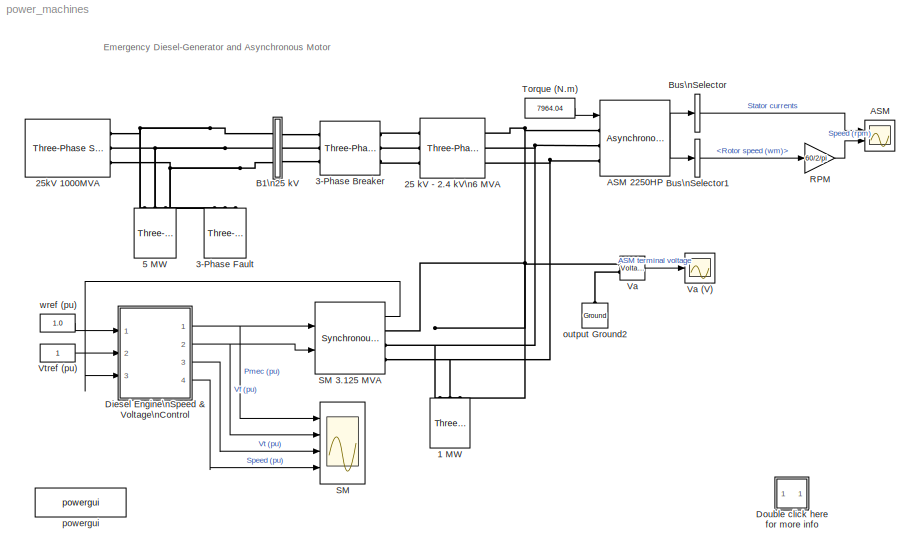
MODEL power_machines
KIND model
BLOCK [Reference] 1 MW  REF=powerlib/Elements/Three-Phase\nParallel RLC Load
  ActivePower = 1e6
  AttributesFormatString = \\n
  CapacitivePower = 0
  Configuration = Y (grounded)
  InductivePower = 0
  LConnTagsString = A|B|C
  LeftPortType = p1
  Measurements = None
  NominalFrequency = 60
  NominalVoltage = 2400
  PhysicalDomain = powersysdomain
  Ports = [0, 0, 0, 0, 0, 3]
  RightPortType = p1
  SourceBlock = powerlib/Elements/Three-Phase\nParallel RLC Load
  SourceType = Three-Phase Parallel RLC Load
  SubClassName = unknown
BLOCK [Reference] 25 kV - 2.4 kV\n6 MVA  REF=powerlib/Elements/Three-Phase\nTransformer\n(Two Windings)
  AttributesFormatString = \\n
  DataFile = 'hysteresis'
  Hysteresis = off
  InitialFluxes = [ 0.8 , -0.8 , 0.7 ]
  Lm = 200
  Measurements = None
  NominalPower = [ 6e6 , 60 ]
  Ports = [0, 0, 0, 0, 0, 3, 3]
  Rm = 200
  Saturation = [ 0,0  ;  0.005,1.2  ;  1.0,1.4 ]
  SetInitialFlux = off
  SetSaturation = off
  ShowPortLabels = on
  SourceBlock = powerlib/Elements/Three-Phase\nTransformer\n(Two Windings)
  SourceType = Three-Phase Transformer (Two Windings)
  TransfoNumber = 0
  Winding1 = [ 25e3 , 0.0015 , 0.03]
  Winding1Connection = Yg
  Winding2 = [ 2.4e3 , 0.0015 , 0.03 ]
  Winding2Connection = Delta (D1)
BLOCK [Reference] 25kV 1000MVA  REF=powerlib/Electrical\nSources/Three-Phase Source
  BaseVoltage = 25e3
  Frequency = 60
  Inductance = 25^2/1000/377
  InternalConnection = Yg
  PhaseAngle = 0
  Ports = [0, 0, 0, 0, 0, 0, 3]
  Resistance = 25^2/1000/10
  ShortCircuitLevel = 1000e6
  ShowPortLabels = on
  SourceBlock = powerlib/Electrical\nSources/Three-Phase Source
  SourceType = Three-Phase Source
  SpecifyImpedance = on
  Voltage = 25e3
  XRratio = 10
BLOCK [Reference] 3-Phase Breaker  REF=powerlib/Elements/Three-Phase Breaker
  AttributesFormatString = \\n
  BreakerResistance = 0.01
  External = off
  InitialState = closed
  Measurements = None
  Ports = [0, 0, 0, 0, 0, 3, 3]
  ShowPortLabels = on
  SnubberCapacitance = inf
  SnubberResistance = 1e5
  SourceBlock = powerlib/Elements/Three-Phase Breaker
  SourceType = Three-Phase Breaker
  SwitchA = on
  SwitchB = on
  SwitchC = on
  SwitchTimes = [0.2]
BLOCK [Reference] 3-Phase Fault  REF=powerlib/Elements/Three-Phase Fault
  External = off
  FaultA = on
  FaultB = on
  FaultC = on
  FaultResistance = 0.01
  GroundFault = on
  GroundResistance = 0.001
  InitialStates = [1 1 0]
  Measurements = None
  Ports = [0, 0, 0, 0, 0, 3]
  ShowPortLabels = on
  SnubberCapacitance = inf
  SnubberResistance = inf
  SourceBlock = powerlib/Elements/Three-Phase Fault
  SourceType = Three-Phase Fault
  SwitchStatus = [1 0]
  SwitchTimes = [ 0.1 0.4]
BLOCK [Reference] 5 MW  REF=powerlib/Elements/Three-Phase\nParallel RLC Load
  ActivePower = 5e6
  AttributesFormatString = \\n
  CapacitivePower = 0
  Configuration = Y (grounded)
  InductivePower = 0
  LConnTagsString = A|B|C
  LeftPortType = p1
  Measurements = None
  NominalFrequency = 60
  NominalVoltage = 25e3
  PhysicalDomain = powersysdomain
  Ports = [0, 0, 0, 0, 0, 3]
  RightPortType = p1
  SourceBlock = powerlib/Elements/Three-Phase\nParallel RLC Load
  SourceType = Three-Phase Parallel RLC Load
  SubClassName = unknown
BLOCK [Scope] ASM
  DataFormat = Array
  LimitDataPoints = off
  NumInputPorts = 2
  Ports = [2]
  SaveName = ScopeData1
  TimeRange = 0.2
  YMax = 6000~0
  YMin = -5000~-70
BLOCK [Reference] ASM 2250HP  REF=powerlib/Machines/Asynchronous Machine\nSI Units
  AttributesFormatString = \\n
  InitialConditions = [1 0 0 0 0 0 0 0]
  Lm = 13.04/377
  LoadFlowParameters = 1492000
  Mechanical = [ 63.87 0  2 ]
  NominalParameters = [ 2250*746, 2400, 60 ]
  Ports = [1, 1, 0, 0, 0, 3]
  PresetModel = No
  ReferenceFrame = Rotor
  Rotor = [ 0.022 0.226/377]
  RotorType = Squirrel-cage
  ShowDetailedParameters = on
  ShowPortLabels = on
  SourceBlock = powerlib/Machines/Asynchronous Machine\nSI Units
  SourceType = Asynchronous Machine
  Stator = [ 0.029 0.226/377]
  Units = 1
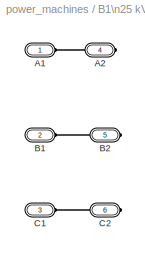
BLOCK [SubSystem] B1\n25 kV
  MaskDisplay = disp('')
  MaskIconFrame = on
  MaskIconOpaque = on
  MaskIconRotate = none
  MaskIconUnits = autoscale
  MinAlgLoopOccurrences = off
  Ports = [0, 0, 0, 0, 0, 3, 3]
  RTWSystemCode = Auto
  TreatAsAtomicUnit = off
BLOCK [PMIOPort] B1\n25 kV/A1
  Port = 1
  Side = Left
BLOCK [PMIOPort] B1\n25 kV/A2
  Port = 4
  Side = Right
BLOCK [PMIOPort] B1\n25 kV/B1
  Port = 2
  Side = Left
BLOCK [PMIOPort] B1\n25 kV/B2
  Port = 5
  Side = Right
BLOCK [PMIOPort] B1\n25 kV/C1
  Port = 3
  Side = Left
BLOCK [PMIOPort] B1\n25 kV/C2
  Port = 6
  Side = Right
BLOCK [BusSelector] Bus\nSelector
  DialogController = Simulink.DDGSource_Bus
  MuxedOutput = on
  OutputSignals = Stator measurements.Stator current is_a (A),Stator measurements.Stator current is_b (A),Stator measurements.Stator current is_c (A)
  Ports = [1, 1]
BLOCK [BusSelector] Bus\nSelector1
  DialogController = Simulink.DDGSource_Bus
  OutputSignals = Mechanical.Rotor speed (wm)
  Ports = [1, 1]
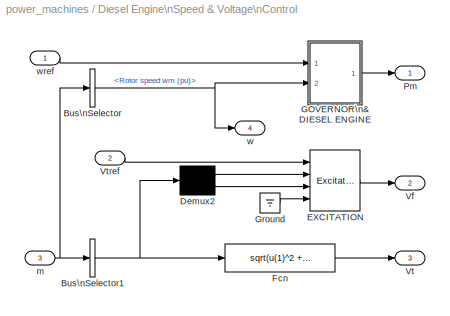
BLOCK [SubSystem] Diesel Engine\nSpeed & Voltage\nControl
  MinAlgLoopOccurrences = off
  Ports = [3, 4]
  RTWSystemCode = Auto
  TreatAsAtomicUnit = off
BLOCK [BusSelector] Diesel Engine\nSpeed & Voltage\nControl/Bus\nSelector
  DialogController = Simulink.DDGSource_Bus
  OutputSignals = Mechanical.Rotor speed  wm  (pu)
  Ports = [1, 1]
BLOCK [BusSelector] Diesel Engine\nSpeed & Voltage\nControl/Bus\nSelector1
  DialogController = Simulink.DDGSource_Bus
  MuxedOutput = on
  OutputSignals = dq0 components.Stator voltage  vd (pu),dq0 components.Stator voltage  vq (pu)
  Ports = [1, 1]
BLOCK [Demux] Diesel Engine\nSpeed & Voltage\nControl/Demux2
  Outputs = 2
  Ports = [1, 2]
BLOCK [Reference] Diesel Engine\nSpeed & Voltage\nControl/EXCITATION  REF=powerlib/Machines/Excitation\nSystem
  Ports = [4, 1]
  ShowPortLabels = on
  SourceBlock = powerlib/Machines/Excitation\nSystem
  SourceType = Excitation System
  damp = [ 0.001, 0.1 ]
  exc = [ 1, 0 ]
  lim = [ 0, 6, 0 ]
  reg = [ 200, 0.02 ]
  sat = [ 0, 0 ]
  tgr = [ 0, 0 ]
  tr = 20e-3
  v0 = [1,1.42734]
BLOCK [Fcn] Diesel Engine\nSpeed & Voltage\nControl/Fcn
  Expr = sqrt(u(1)^2 + u(2)^2)
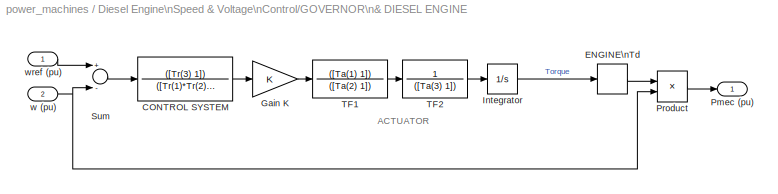
BLOCK [SubSystem] Diesel Engine\nSpeed & Voltage\nControl/GOVERNOR\n& DIESEL ENGINE
  MaskCallbackString = |||||
  MaskDescription = This block implements a diesel engine and governor system:\n1st and 2nd inputs: Desired and actual speed (pu)\nOutput: Diesel engine mechanical power.Motor inertia should be combined with generator.\nController transfer function:\n     Hc=K.(1+T3.s)/(1+T1.s+T1.T2.s^2)\nActuator transfer function : \n     Ha= (1+T4.s) / [ (s (1+T5.s)(1+T6.s) ]\nMotor :\n     Time delay Td\n\n(See reference in Tutor...<+14ch>
  MaskEnableString = on,on,on,on,on,on
  MaskIconFrame = on
  MaskIconOpaque = on
  MaskIconRotate = none
  MaskIconUnits = autoscale
  MaskPromptString = Regulator gain K: |Regulator time constants [T1 T2 T3 ] (s) :|Actuator time constants [T4 T5 T6] (s) :|Torque limits [Tmin Tmax] (pu) :|Engine time delay Td (s) :|Initial value of mechanical power  Pm0 (pu) :
  MaskStyleString = edit,edit,edit,edit,edit,edit
  MaskTabNameString = ,,,,,
  MaskToolTipString = on,on,on,on,on,on
  MaskTunableValueString = on,on,on,on,on,on
  MaskType = Diesel Engine & Governor
  MaskValueString = 40|[0.01 0.02 0.2]|[0.25 0.009 0.0384]|[0 1.1]|0.024|0.000270147
  MaskVarAliasString = ,,,,,
  MaskVariables = K=@1;Tr=@2;Ta=@3;Tlim=@4;Td=@5;Pm0=@6;
  MaskVisibilityString = on,on,on,on,on,on
  MinAlgLoopOccurrences = off
  Ports = [2, 1]
  RTWSystemCode = Auto
  TreatAsAtomicUnit = off
BLOCK [TransferFcn] Diesel Engine\nSpeed & Voltage\nControl/GOVERNOR\n& DIESEL ENGINE/CONTROL SYSTEM
  Denominator = ([Tr(1)*Tr(2)  Tr(1) 1])
  Numerator = ([Tr(3) 1])
BLOCK [TransportDelay] Diesel Engine\nSpeed & Voltage\nControl/GOVERNOR\n& DIESEL ENGINE/ENGINE\nTd
  DelayTime = Td
  InitialInput = Pm0
BLOCK [Gain] Diesel Engine\nSpeed & Voltage\nControl/GOVERNOR\n& DIESEL ENGINE/Gain K
  Gain = K
BLOCK [Integrator] Diesel Engine\nSpeed & Voltage\nControl/GOVERNOR\n& DIESEL ENGINE/Integrator
  InitialCondition = Pm0
  LimitOutput = on
  LowerSaturationLimit = Tlim(1)
  Ports = [1, 1]
  UpperSaturationLimit = Tlim(2)
BLOCK [Outport] Diesel Engine\nSpeed & Voltage\nControl/GOVERNOR\n& DIESEL ENGINE/Pmec (pu)
  BusOutputAsStruct = off
  IconDisplay = Port number
  InitialOutput = 0
BLOCK [Product] Diesel Engine\nSpeed & Voltage\nControl/GOVERNOR\n& DIESEL ENGINE/Product
  Ports = [2, 1]
  RndMeth = Floor
BLOCK [Sum] Diesel Engine\nSpeed & Voltage\nControl/GOVERNOR\n& DIESEL ENGINE/Sum
  Inputs = +-
  Ports = [2, 1]
BLOCK [TransferFcn] Diesel Engine\nSpeed & Voltage\nControl/GOVERNOR\n& DIESEL ENGINE/TF1
  Denominator = ([Ta(2) 1])
  Numerator = ([Ta(1) 1])
BLOCK [TransferFcn] Diesel Engine\nSpeed & Voltage\nControl/GOVERNOR\n& DIESEL ENGINE/TF2
  Denominator = ([Ta(3) 1])
  Numerator = 1
BLOCK [Inport] Diesel Engine\nSpeed & Voltage\nControl/GOVERNOR\n& DIESEL ENGINE/w (pu)
  IconDisplay = Port number
  LatchInput = off
  Port = 2
BLOCK [Inport] Diesel Engine\nSpeed & Voltage\nControl/GOVERNOR\n& DIESEL ENGINE/wref (pu)
  IconDisplay = Port number
  LatchInput = off
  Port = 1
BLOCK [Ground] Diesel Engine\nSpeed & Voltage\nControl/Ground
BLOCK [Outport] Diesel Engine\nSpeed & Voltage\nControl/Pm
  BusOutputAsStruct = off
  IconDisplay = Port number
  InitialOutput = 0
BLOCK [Outport] Diesel Engine\nSpeed & Voltage\nControl/Vf
  BusOutputAsStruct = off
  IconDisplay = Port number
  InitialOutput = 0
  Port = 2
BLOCK [Outport] Diesel Engine\nSpeed & Voltage\nControl/Vt
  BusOutputAsStruct = off
  IconDisplay = Port number
  InitialOutput = 0
  Port = 3
BLOCK [Inport] Diesel Engine\nSpeed & Voltage\nControl/Vtref
  IconDisplay = Port number
  LatchInput = off
  Port = 2
BLOCK [Inport] Diesel Engine\nSpeed & Voltage\nControl/m
  IconDisplay = Port number
  LatchInput = off
  Port = 3
BLOCK [Outport] Diesel Engine\nSpeed & Voltage\nControl/w
  BusOutputAsStruct = off
  IconDisplay = Port number
  InitialOutput = 0
  Port = 4
BLOCK [Inport] Diesel Engine\nSpeed & Voltage\nControl/wref
  IconDisplay = Port number
  LatchInput = off
  Port = 1
BLOCK [SubSystem] Double click here for more info
  MaskDisplay = disp('?')
  MaskIconFrame = on
  MaskIconOpaque = on
  MaskIconRotate = none
  MaskIconUnits = autoscale
  MinAlgLoopOccurrences = off
  Ports = []
  RTWSystemCode = Auto
  TreatAsAtomicUnit = off
BLOCK [Gain] RPM
  Gain = 60/2/pi
BLOCK [Scope] SM
  DataFormat = Structure
  Decimation = 10
  LimitDataPoints = off
  NumInputPorts = 4
  Ports = [4]
  SaveName = Pmec_SM
  SaveToWorkspace = on
  TimeRange = 0.8
  YMax = 1.5~6~1.5~1.2
  YMin = 0~0~0~0.8
  ZoomMode = yonly
BLOCK [Reference] SM 3.125 MVA  REF=powerlib/Machines/Synchronous Machine\npu Standard
  AttributesFormatString = \\n\\n
  InitialConditions = [0 0 0 0 0 0 0 0 1]
  LoadFlowParameters = [1 0 0 0]
  Mechanical = [ 1.07  0  2 ]
  NominalParameters = [ 3.125e6  2400  60]
  Ports = [2, 1, 0, 0, 0, 0, 3]
  PresetModel = No
  Reactances1 = [ 31 32 33 34 35 36 37 ]
  Reactances2 = [ 1.56, 0.296, 0.177, 1.06, 0.177, 0.052 ]
  RotorType = Salient-pole
  Saturation = [0.211 0.418 1.0 1.72 3.35 ; 0.25 0.50 1.0 1.2 1.4]
  SetSaturation = off
  ShowDetailedParameters = on
  ShowPortLabels = on
  SourceBlock = powerlib/Machines/Synchronous Machine\npu Standard
  SourceType = Synchronous Machine
  StatorResistance = 0.0036
  TimeConstants1 = []
  TimeConstants2 = []
  TimeConstants3 = []
  TimeConstants4 = []
  TimeConstants5 = [ 3.7, 0.05, 0.05 ]
  TimeConstants6 = []
  TimeConstants7 = [0.024 0.006 0.006]
  TimeConstants8 = []
  Units = 0.5
  dAxisTimeConstants = Short-circuit
  qAxisTimeConstants = Open-circuit
BLOCK [Constant] Torque (N.m)
  Value = 7964.04
BLOCK [Reference] Va  REF=powerlib/Measurements/Voltage Measurement
  AttributesFormatString = \\n
  OutputType = Magnitude
  PSBequivalent = 0
  PhasorSimulation = off
  Ports = [0, 1, 0, 0, 0, 2]
  ShowPortLabels = on
  SourceBlock = powerlib/Measurements/Voltage Measurement
  SourceType = Voltage Measurement
  Tag = PoWeRsYsTeMmEaSuReMeNt
BLOCK [Scope] Va (V)
  DataFormat = Array
  LimitDataPoints = off
  NumInputPorts = 1
  Ports = [1]
  TickLabels = on
  TimeRange = 0.2
  YMax = 2000
  YMin = -2000
  ZoomMode = xonly
BLOCK [Constant] Vtref (pu)
BLOCK [Reference] output Ground2  REF=powerlib/Elements/Ground
  AttributesFormatString = \\n
  LConnTagsString = a
  LeftPortType = p1
  PhysicalDomain = powersysdomain
  Ports = [0, 0, 0, 0, 0, 1]
  RightPortType = p1
  SourceBlock = powerlib/Elements/Ground
  SourceType = Ground
  SubClassName = unknown
BLOCK [Reference] powergui  REF=powerlib/powergui
  DisplayStyle = off
  Frange = logspace(0,3,50)
  FreqAxis = off
  MaxFrequency = 1000
  Ports = []
  Priority = 2
  RmsSteady = 1
  ShowPortLabels = on
  SourceBlock = powerlib/powergui
  SourceType = PSB option menu block
  StartTime = 0.0
  Ts = 0
  Xlog = off
  Ylog = off
  ZoomFFT = on
  cycles = 2
  display = off
  echomessages = on
  frequency = 60
  frequencyindice = 60
  frequencyindicesteady = 1
  fundamental = 60
  methode = off
  save = off
  variable = ZData
BLOCK [Constant] wref (pu)
  Value = 1.0
ANNOTATION (root): Emergency Diesel-Generator and Asynchronous Motor
ANNOTATION Diesel Engine\nSpeed & Voltage\nControl/GOVERNOR\n& DIESEL ENGINE: ACTUATOR
ANNOTATION Double click here for more info: 1
ANNOTATION Double click here for more info: 2
ANNOTATION Double click here for more info: 3
ANNOTATION Double click here for more info: 4
ANNOTATION Double click here for more info: A plant consisting of a resistive and motor load (ASM) is fed at 2400 V from a distibution 25 kV network through a 6 MVA 25/2 kV Wye-Delta transformer and from an\nemergency synchronous generator/ diesel engine unit (SM). The 25 kV network is modelled by a simple R-L equivalent source (short-circuit level 1000 MVA) and a 5 MW load.\nThe asynchronous motor is rated 2250 HP, 2.4 kV and the synchrono...<+746ch>
ANNOTATION Double click here for more info: Circuit Description
ANNOTATION Double click here for more info: Demonstration
ANNOTATION Double click here for more info: G. Sybille (Hydro-Quebec)
ANNOTATION Double click here for more info: In order to start the simulation in steady-state, you must initialize the synchronous machine and the asynchronous motor for the desired load flow.\nOpen the Powergui and select \"Load Flow & Machine initialization\" . The machine \"Bus type\" should be already initialized as \"PV generator\",\nindicating that the load flow will be performed with the machine controlling its active power and termin...<+77ch>
ANNOTATION Double click here for more info: Load Flow : U AB (Vrms) = 2400 , P (wattts) = 0. Specify also the ASM mechanical power by entering Pmec (Watts) = 2000*746.
ANNOTATION Double click here for more info: Open the SM and ASM scopes displaying the synchronous machine and asynchronous machine signals. Start the simulation.\nObserve that during the fault the terminal voltage drops to about 0.2 pu and the excitation voltage hits the limit of 6 pu. After fault clearing and islanding\nthe SM mechanical power increases from its initial value of 0 pu to the final value of 0.80 pu required by the resistive ...<+401ch>
ANNOTATION Double click here for more info: Start Simulation. If the SM and ASM initial conditions are not properly set, you observe that the voltage and currents Machine do not start in steady state.\nStop the simulation.
ANNOTATION Double click here for more info: The diesel engine governor and SM excitation system contain integrators and transfer functions which have also been initialized by the load flow.\nOpen the GOVERNOR block in the Diesel Engine subsystem. Note that the initial mechanical power has been automatically set to 0.00027 pu (844 W).\nNow open the EXCITATION block. Notice in the last line of the block menu, that the initial terminal voltage...<+207ch>
ANNOTATION Double click here for more info: Then press the \"Execute Load Flow\" button.\n\nOnce the load flow is solved, the three line-to-line machine voltages and the three machine currents are updated.\nThe SM reactive power, mechanical power and field voltage are displayed: Q = 856 kvar; Pmec = 844 W (power required by resistive losses in stator winding );\n field voltage Ef = 1.4273 pu; the active and reactive powers absorbed by the m...<+41ch>
ANNOTATION Double click here for more info: This demonstration illustrates fault and islanding of an induction motor/diesel-generator system\nand demonstrates the Machine Load Flow option of the Powergui. (See Chapter 2 of the User's Guide.)
NET ASM 2250HP:1 -> Bus\nSelector1:1, Bus\nSelector:1
LINE Bus\nSelector1:1 -> RPM:1
LINE Bus\nSelector:1 -> ASM:1
NET Diesel Engine\nSpeed & Voltage\nControl/Bus\nSelector1:1 -> Diesel Engine\nSpeed & Voltage\nControl/Demux2:1, Diesel Engine\nSpeed & Voltage\nControl/Fcn:1
NET Diesel Engine\nSpeed & Voltage\nControl/Bus\nSelector:1 -> Diesel Engine\nSpeed & Voltage\nControl/GOVERNOR\n& DIESEL ENGINE:2, Diesel Engine\nSpeed & Voltage\nControl/w:1
LINE Diesel Engine\nSpeed & Voltage\nControl/Demux2:1 -> Diesel Engine\nSpeed & Voltage\nControl/EXCITATION:2
LINE Diesel Engine\nSpeed & Voltage\nControl/Demux2:2 -> Diesel Engine\nSpeed & Voltage\nControl/EXCITATION:3
LINE Diesel Engine\nSpeed & Voltage\nControl/EXCITATION:1 -> Diesel Engine\nSpeed & Voltage\nControl/Vf:1
LINE Diesel Engine\nSpeed & Voltage\nControl/Fcn:1 -> Diesel Engine\nSpeed & Voltage\nControl/Vt:1
LINE Diesel Engine\nSpeed & Voltage\nControl/GOVERNOR\n& DIESEL ENGINE/CONTROL SYSTEM:1 -> Diesel Engine\nSpeed & Voltage\nControl/GOVERNOR\n& DIESEL ENGINE/Gain K:1
LINE Diesel Engine\nSpeed & Voltage\nControl/GOVERNOR\n& DIESEL ENGINE/ENGINE\nTd:1 -> Diesel Engine\nSpeed & Voltage\nControl/GOVERNOR\n& DIESEL ENGINE/Product:1
LINE Diesel Engine\nSpeed & Voltage\nControl/GOVERNOR\n& DIESEL ENGINE/Gain K:1 -> Diesel Engine\nSpeed & Voltage\nControl/GOVERNOR\n& DIESEL ENGINE/TF1:1
LINE Diesel Engine\nSpeed & Voltage\nControl/GOVERNOR\n& DIESEL ENGINE/Integrator:1 -> Diesel Engine\nSpeed & Voltage\nControl/GOVERNOR\n& DIESEL ENGINE/ENGINE\nTd:1
LINE Diesel Engine\nSpeed & Voltage\nControl/GOVERNOR\n& DIESEL ENGINE/Product:1 -> Diesel Engine\nSpeed & Voltage\nControl/GOVERNOR\n& DIESEL ENGINE/Pmec (pu):1
LINE Diesel Engine\nSpeed & Voltage\nControl/GOVERNOR\n& DIESEL ENGINE/Sum:1 -> Diesel Engine\nSpeed & Voltage\nControl/GOVERNOR\n& DIESEL ENGINE/CONTROL SYSTEM:1
LINE Diesel Engine\nSpeed & Voltage\nControl/GOVERNOR\n& DIESEL ENGINE/TF1:1 -> Diesel Engine\nSpeed & Voltage\nControl/GOVERNOR\n& DIESEL ENGINE/TF2:1
LINE Diesel Engine\nSpeed & Voltage\nControl/GOVERNOR\n& DIESEL ENGINE/TF2:1 -> Diesel Engine\nSpeed & Voltage\nControl/GOVERNOR\n& DIESEL ENGINE/Integrator:1
NET Diesel Engine\nSpeed & Voltage\nControl/GOVERNOR\n& DIESEL ENGINE/w (pu):1 -> Diesel Engine\nSpeed & Voltage\nControl/GOVERNOR\n& DIESEL ENGINE/Product:2, Diesel Engine\nSpeed & Voltage\nControl/GOVERNOR\n& DIESEL ENGINE/Sum:2
LINE Diesel Engine\nSpeed & Voltage\nControl/GOVERNOR\n& DIESEL ENGINE/wref (pu):1 -> Diesel Engine\nSpeed & Voltage\nControl/GOVERNOR\n& DIESEL ENGINE/Sum:1
LINE Diesel Engine\nSpeed & Voltage\nControl/GOVERNOR\n& DIESEL ENGINE:1 -> Diesel Engine\nSpeed & Voltage\nControl/Pm:1
LINE Diesel Engine\nSpeed & Voltage\nControl/Ground:1 -> Diesel Engine\nSpeed & Voltage\nControl/EXCITATION:4
LINE Diesel Engine\nSpeed & Voltage\nControl/Vtref:1 -> Diesel Engine\nSpeed & Voltage\nControl/EXCITATION:1
NET Diesel Engine\nSpeed & Voltage\nControl/m:1 -> Diesel Engine\nSpeed & Voltage\nControl/Bus\nSelector1:1, Diesel Engine\nSpeed & Voltage\nControl/Bus\nSelector:1
LINE Diesel Engine\nSpeed & Voltage\nControl/wref:1 -> Diesel Engine\nSpeed & Voltage\nControl/GOVERNOR\n& DIESEL ENGINE:1
NET Diesel Engine\nSpeed & Voltage\nControl:1 -> SM 3.125 MVA:1, SM:1
NET Diesel Engine\nSpeed & Voltage\nControl:2 -> SM 3.125 MVA:2, SM:2
LINE Diesel Engine\nSpeed & Voltage\nControl:3 -> SM:3
LINE Diesel Engine\nSpeed & Voltage\nControl:4 -> SM:4
LINE RPM:1 -> ASM:2
LINE SM 3.125 MVA:1 -> Diesel Engine\nSpeed & Voltage\nControl:3
LINE Torque (N.m):1 -> ASM 2250HP:1
LINE Va:1 -> Va (V):1
LINE Vtref (pu):1 -> Diesel Engine\nSpeed & Voltage\nControl:2
LINE wref (pu):1 -> Diesel Engine\nSpeed & Voltage\nControl:1
PNET net1: 1 MW:LConn1 -- 25 kV - 2.4 kV\n6 MVA:RConn1 -- ASM 2250HP:LConn1 -- SM 3.125 MVA:RConn1 -- Va:LConn1
PNET net2: 1 MW:LConn2 -- 25 kV - 2.4 kV\n6 MVA:RConn2 -- ASM 2250HP:LConn2 -- SM 3.125 MVA:RConn2
PNET net3: 1 MW:LConn3 -- 25 kV - 2.4 kV\n6 MVA:RConn3 -- ASM 2250HP:LConn3 -- SM 3.125 MVA:RConn3
PLINE 25 kV - 2.4 kV\n6 MVA:LConn1 -- 3-Phase Breaker:RConn1
PLINE 25 kV - 2.4 kV\n6 MVA:LConn2 -- 3-Phase Breaker:RConn2
PLINE 25 kV - 2.4 kV\n6 MVA:LConn3 -- 3-Phase Breaker:RConn3
PNET net4: 25kV 1000MVA:RConn1 -- 3-Phase Fault:LConn1 -- 5 MW:LConn1 -- B1\n25 kV:LConn1
PNET net5: 25kV 1000MVA:RConn2 -- 3-Phase Fault:LConn2 -- 5 MW:LConn2 -- B1\n25 kV:LConn2
PNET net6: 25kV 1000MVA:RConn3 -- 3-Phase Fault:LConn3 -- 5 MW:LConn3 -- B1\n25 kV:LConn3
PLINE 3-Phase Breaker:LConn1 -- B1\n25 kV:RConn1
PLINE 3-Phase Breaker:LConn2 -- B1\n25 kV:RConn2
PLINE 3-Phase Breaker:LConn3 -- B1\n25 kV:RConn3
PLINE B1\n25 kV/A1:RConn1 -- B1\n25 kV/A2:RConn1
PLINE B1\n25 kV/B1:RConn1 -- B1\n25 kV/B2:RConn1
PLINE B1\n25 kV/C1:RConn1 -- B1\n25 kV/C2:RConn1
PLINE Va:LConn2 -- output Ground2:LConn1
note: NET lines group one-source signal fan-out (src -> all destinations, sorted); 1:1 wires keep LINE; PNET lines group multi-terminal physical nets as a canonical sorted terminal list (undirected conserving connections); 2-terminal nets keep the pairwise PLINE form
